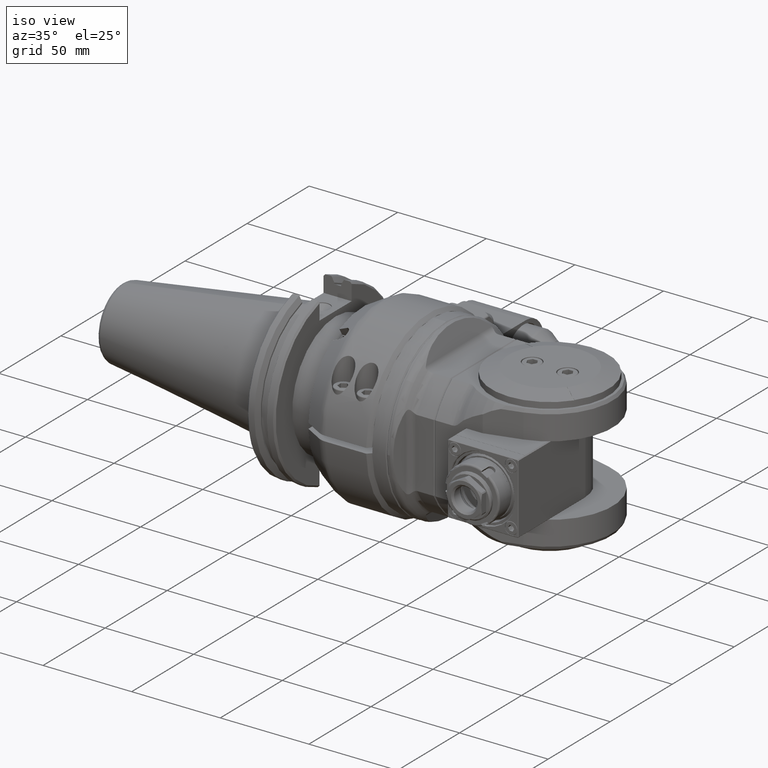
[diagram: clean part render]
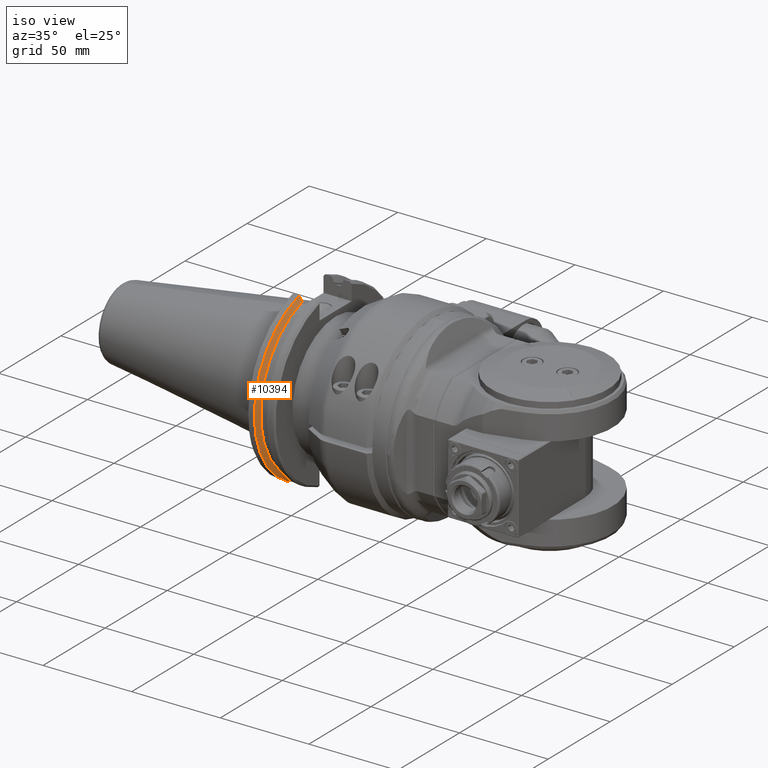
[diagram: same view with one face highlighted and labeled with its STEP entity id]
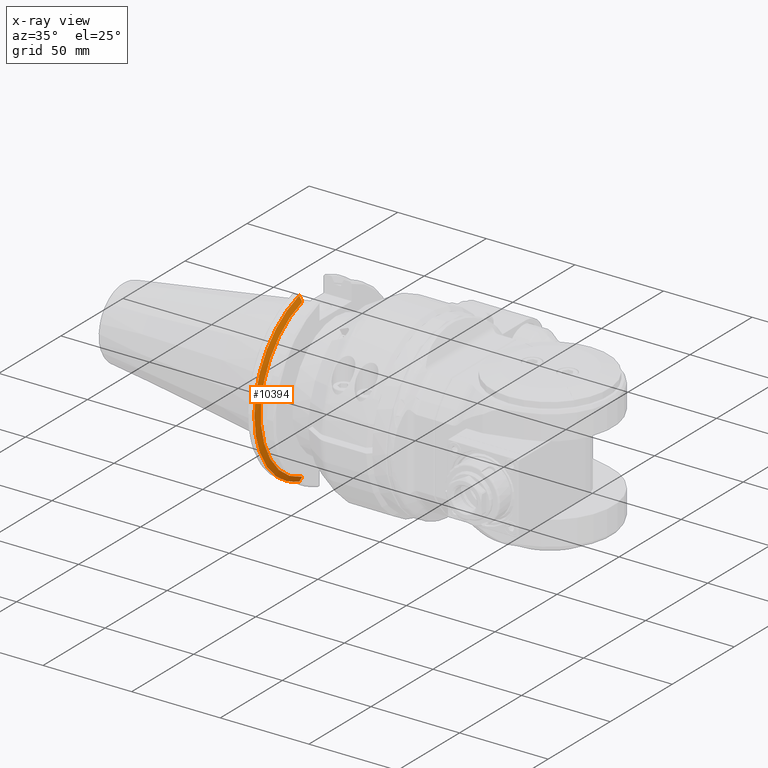
[diagram: x-ray of the same camera — body ghosted, the highlighted face saturated]
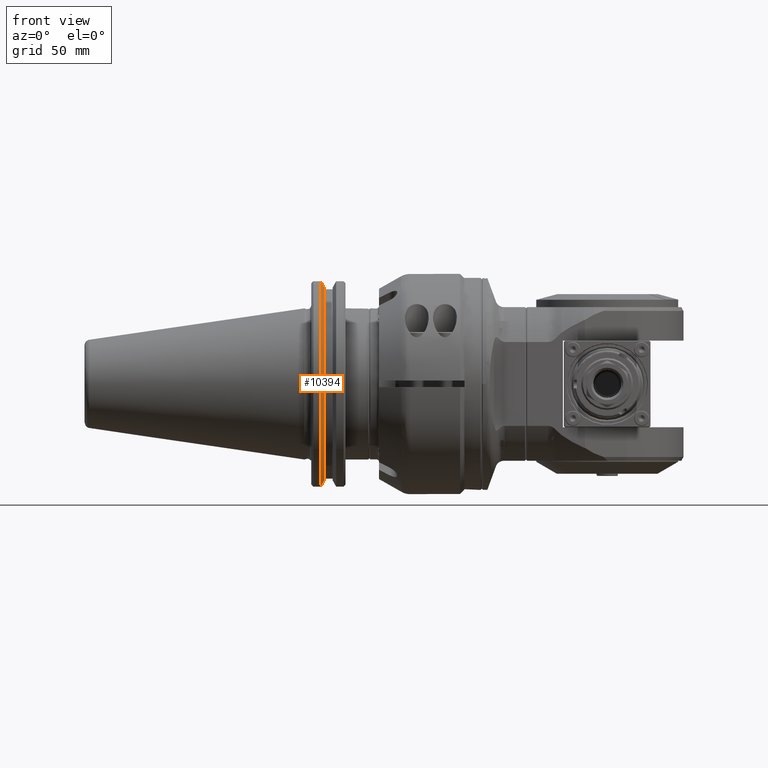
[diagram: same view with one face highlighted and labeled with its STEP entity id]
A machine part, iso view. The second image highlights one B-rep face of the part: STEP entity #10394.
The next image is the same camera in x-ray: the body ghosted, the highlighted face saturated — about 0% of this face is hidden behind the body in this view.
A second angle (front view) of the same face is appended — the face is thin or edge-on in the first view.
In plain terms, the highlighted conical surface has half-angle 60 deg.
Its self-contained STEP definition (entity closure, byte-faithful):
#266=(
BOUNDED_CURVE()
B_SPLINE_CURVE(2,(#57543,#57544,#57545),.UNSPECIFIED.,.F.,.F.)
B_SPLINE_CURVE_WITH_KNOTS((3,3),(2.60401638925369,2.88858881599891),
 .UNSPECIFIED.)
CURVE()
GEOMETRIC_REPRESENTATION_ITEM()
RATIONAL_B_SPLINE_CURVE((1.03389068892079,1.03145588723297,1.02808418266421))
REPRESENTATION_ITEM('')
);
#268=(
BOUNDED_CURVE()
B_SPLINE_CURVE(2,(#57572,#57573,#57574),.UNSPECIFIED.,.F.,.F.)
B_SPLINE_CURVE_WITH_KNOTS((3,3),(-2.88858881599887,-2.60401638925357),
 .UNSPECIFIED.)
CURVE()
GEOMETRIC_REPRESENTATION_ITEM()
RATIONAL_B_SPLINE_CURVE((1.02808418266417,1.03145588723292,1.03389068892073))
REPRESENTATION_ITEM('')
);
#772=CONICAL_SURFACE('',#11231,47.81935371176,1.0471975511966);
#1079=FACE_OUTER_BOUND('',#1738,.T.);
#1738=EDGE_LOOP('',(#7971,#7972,#7973,#7974));
#2376=CIRCLE('',#11232,46.42620742351);
#2377=CIRCLE('',#11233,49.2125);
#4636=VERTEX_POINT('',#57541);
#4637=VERTEX_POINT('',#57542);
#4648=VERTEX_POINT('',#57570);
#4649=VERTEX_POINT('',#57571);
#5863=EDGE_CURVE('',#4636,#4637,#266,.T.);
#5875=EDGE_CURVE('',#4648,#4649,#268,.T.);
#5876=EDGE_CURVE('',#4636,#4649,#2376,.T.);
#5877=EDGE_CURVE('',#4637,#4648,#2377,.T.);
#7971=ORIENTED_EDGE('',*,*,#5875,.T.);
#7972=ORIENTED_EDGE('',*,*,#5876,.F.);
#7973=ORIENTED_EDGE('',*,*,#5863,.T.);
#7974=ORIENTED_EDGE('',*,*,#5877,.T.);
#10394=ADVANCED_FACE('',(#1079),#772,.T.);
#11231=AXIS2_PLACEMENT_3D('',#57569,#12983,#12984);
#11232=AXIS2_PLACEMENT_3D('',#57575,#12985,#12986);
#11233=AXIS2_PLACEMENT_3D('',#57576,#12987,#12988);
#12983=DIRECTION('center_axis',(-1.,0.,0.));
#12984=DIRECTION('ref_axis',(0.,-1.,-8.52465898551809E-10));
#12985=DIRECTION('center_axis',(1.,0.,0.));
#12986=DIRECTION('ref_axis',(0.,-1.,-8.524644438195E-10));
#12987=DIRECTION('center_axis',(1.,0.,0.));
#12988=DIRECTION('ref_axis',(0.,-0.263225807274001,0.964734250654008));
#57541=CARTESIAN_POINT('',(-76.741499999999,-12.9540000380049,44.5823577073572));
#57542=CARTESIAN_POINT('',(-78.350166769074,-12.9540000404724,47.4769843103072));
#57543=CARTESIAN_POINT('Ctrl Pts',(-76.7414999999928,-12.9540000380049,
44.5823577073458));
#57544=CARTESIAN_POINT('Ctrl Pts',(-77.5205426888212,-12.9540000392027,
45.9875056721571));
#57545=CARTESIAN_POINT('Ctrl Pts',(-78.3501667692027,-12.9540000404724,
47.4769843105432));
#57569=CARTESIAN_POINT('Origin',(-77.545833384537,0.,0.));
#57570=CARTESIAN_POINT('',(-78.350166769075,-12.9539999595276,-47.4769843323928));
#57571=CARTESIAN_POINT('',(-76.741499999999,-12.9539999619951,-44.5823577294428));
#57572=CARTESIAN_POINT('Ctrl Pts',(-78.3501667692029,-12.9539999595276,
-47.4769843326293));
#57573=CARTESIAN_POINT('Ctrl Pts',(-77.5205426888213,-12.9539999607973,
-45.987505694243));
#57574=CARTESIAN_POINT('Ctrl Pts',(-76.7414999999928,-12.9539999619951,
-44.5823577294315));
#57575=CARTESIAN_POINT('Origin',(-76.741499999999,0.,0.));
#57576=CARTESIAN_POINT('Origin',(-78.350166769075,0.,0.));